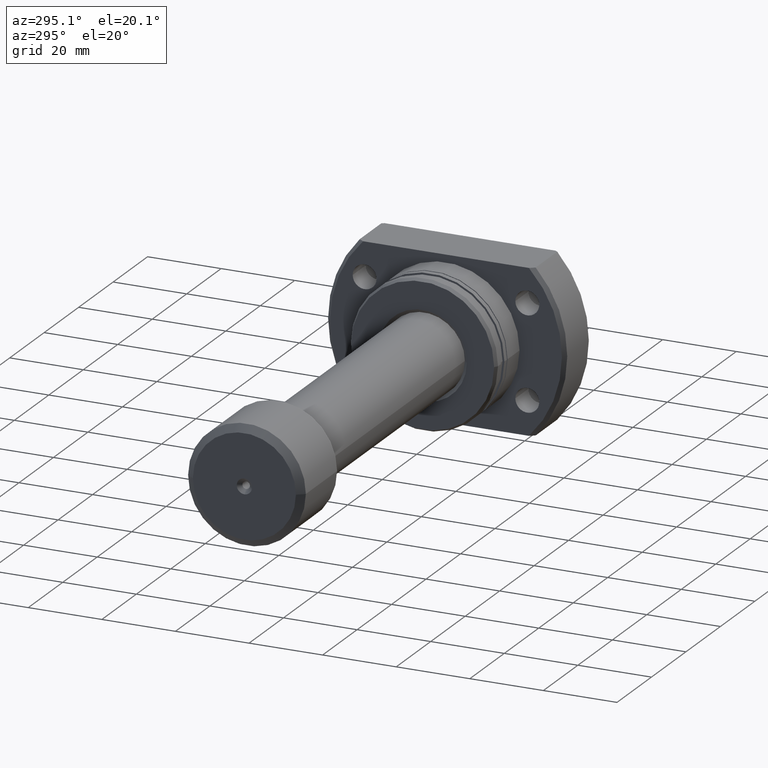
[diagram: clean part render]
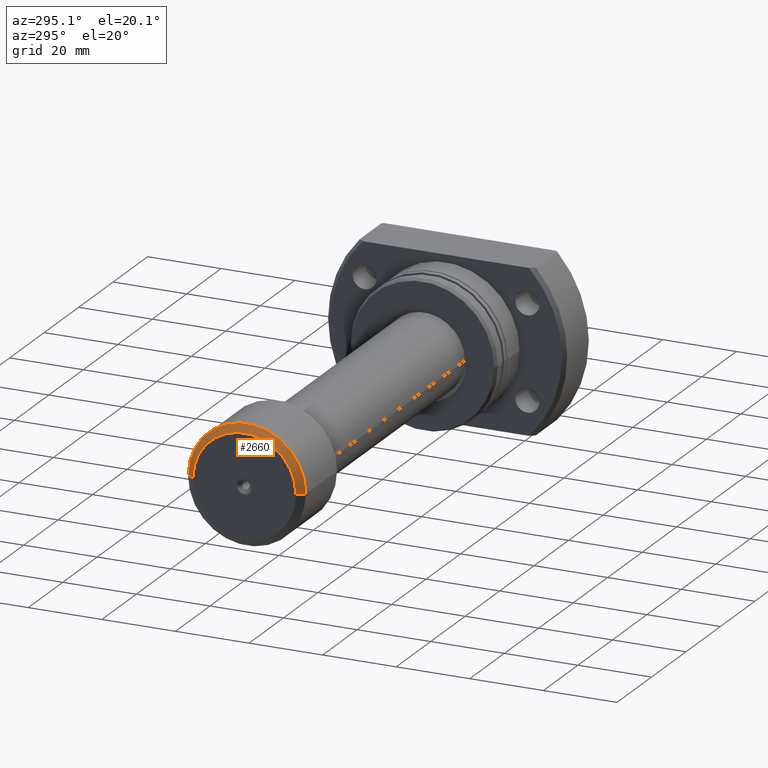
[diagram: same view with one face highlighted and labeled with its STEP entity id]
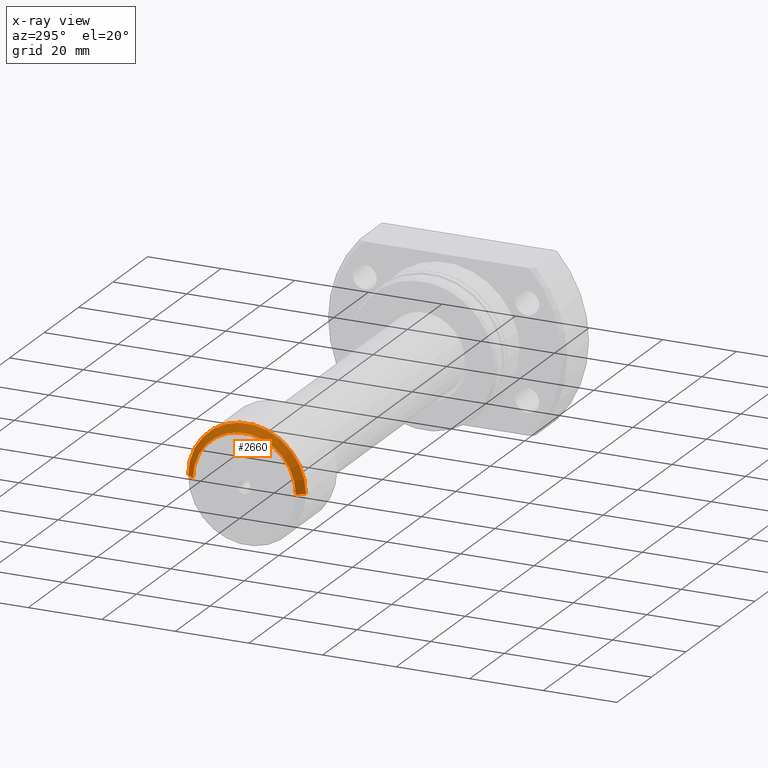
[diagram: x-ray of the same camera — body ghosted, the highlighted face saturated]
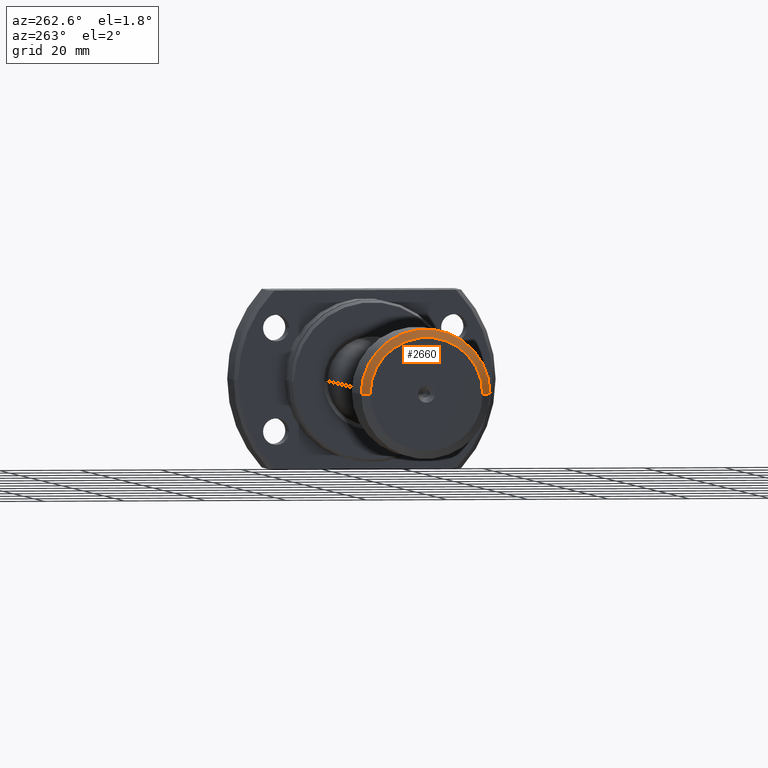
[diagram: same view with one face highlighted and labeled with its STEP entity id]
A machine part, auxiliary view. The second image highlights one B-rep face of the part: STEP entity #2660.
The next image is the same camera in x-ray: the body ghosted, the highlighted face saturated — about 0% of this face is hidden behind the body in this view.
A second angle (auxiliary view) of the same face is appended — the face is thin or edge-on in the first view.
In plain terms, the highlighted conical surface has half-angle 53.13 deg.
Its self-contained STEP definition (entity closure, byte-faithful):
#25 = CARTESIAN_POINT ( 'NONE',  ( 1.714505518806294638E-15, -14.00000000000000000, 1.836970198721029589E-15 ) ) ;
#128 = CARTESIAN_POINT ( 'NONE',  ( 1.415033668626956010E-15, 14.00000000000000000, 0.000000000000000000 ) ) ;
#234 = VERTEX_POINT ( 'NONE', #1024 ) ;
#290 = CARTESIAN_POINT ( 'NONE',  ( 1.714505518806294638E-15, -14.00000000000000000, 1.714505518806294638E-15 ) ) ;
#676 = CARTESIAN_POINT ( 'NONE',  ( 1.564769593716625324E-15, 1.673587304766748118E-32, 0.000000000000000000 ) ) ;
#822 = AXIS2_PLACEMENT_3D ( 'NONE', #2921, #2858, #3137 ) ;
#829 = VECTOR ( 'NONE', #1083, 999.9999999999998863 ) ;
#842 = ORIENTED_EDGE ( 'NONE', *, *, #3289, .F. ) ;
#885 = CIRCLE ( 'NONE', #3203, 14.00000000000000000 ) ;
#951 = DIRECTION ( 'NONE',  ( 1.069542322069066109E-17, -1.000000000000000000, 0.000000000000000000 ) ) ;
#1024 = CARTESIAN_POINT ( 'NONE',  ( 1.500000000000001776, 16.00000000000000000, 0.000000000000000000 ) ) ;
#1045 = CARTESIAN_POINT ( 'NONE',  ( 1.500000000000002220, -16.00000000000000000, 1.959434878635765526E-15 ) ) ;
#1083 = DIRECTION ( 'NONE',  ( 0.6000000000000001998, 0.7999999999999999334, 0.000000000000000000 ) ) ;
#1110 = EDGE_LOOP ( 'NONE', ( #842, #2164, #3309, #2530 ) ) ;
#1282 = DIRECTION ( 'NONE',  ( -1.000000000000000000, -1.069542322069065801E-17, -0.000000000000000000 ) ) ;
#1336 = VERTEX_POINT ( 'NONE', #1045 ) ;
#1540 = AXIS2_PLACEMENT_3D ( 'NONE', #1562, #1282, #2421 ) ;
#1562 = CARTESIAN_POINT ( 'NONE',  ( 1.500000000000001998, 1.604313483103600935E-17, 0.000000000000000000 ) ) ;
#1816 = DIRECTION ( 'NONE',  ( -1.000000000000000000, -1.069542322069065801E-17, -0.000000000000000000 ) ) ;
#1820 = EDGE_CURVE ( 'NONE', #1336, #234, #3146, .T. ) ;
#1899 = DIRECTION ( 'NONE',  ( 0.6000000000000001998, -0.7999999999999999334, 9.797174393178826150E-17 ) ) ;
#1916 = VERTEX_POINT ( 'NONE', #128 ) ;
#2164 = ORIENTED_EDGE ( 'NONE', *, *, #3401, .T. ) ;
#2280 = LINE ( 'NONE', #290, #3148 ) ;
#2421 = DIRECTION ( 'NONE',  ( 1.355252715606880543E-17, -1.000000000000000000, 0.000000000000000000 ) ) ;
#2530 = ORIENTED_EDGE ( 'NONE', *, *, #2572, .F. ) ;
#2572 = EDGE_CURVE ( 'NONE', #1916, #234, #2782, .T. ) ;
#2660 = ADVANCED_FACE ( 'NONE', ( #3159 ), #3378, .T. ) ;
#2782 = LINE ( 'NONE', #3623, #829 ) ;
#2858 = DIRECTION ( 'NONE',  ( 1.000000000000000000, 1.069542322069065801E-17, 0.000000000000000000 ) ) ;
#2921 = CARTESIAN_POINT ( 'NONE',  ( 1.564769593716625324E-15, 1.673587304766748118E-32, 0.000000000000000000 ) ) ;
#3105 = VERTEX_POINT ( 'NONE', #25 ) ;
#3137 = DIRECTION ( 'NONE',  ( -1.069542322069066109E-17, 1.000000000000000000, 0.000000000000000000 ) ) ;
#3146 = CIRCLE ( 'NONE', #1540, 16.00000000000000000 ) ;
#3148 = VECTOR ( 'NONE', #1899, 999.9999999999998863 ) ;
#3159 = FACE_OUTER_BOUND ( 'NONE', #1110, .T. ) ;
#3203 = AXIS2_PLACEMENT_3D ( 'NONE', #676, #1816, #951 ) ;
#3289 = EDGE_CURVE ( 'NONE', #3105, #1916, #885, .T. ) ;
#3309 = ORIENTED_EDGE ( 'NONE', *, *, #1820, .T. ) ;
#3378 = CONICAL_SURFACE ( 'NONE', #822, 14.00000000000000000, 0.9272952180016120760 ) ;
#3401 = EDGE_CURVE ( 'NONE', #3105, #1336, #2280, .T. ) ;
#3623 = CARTESIAN_POINT ( 'NONE',  ( 1.415033668626956010E-15, 14.00000000000000000, 0.000000000000000000 ) ) ;